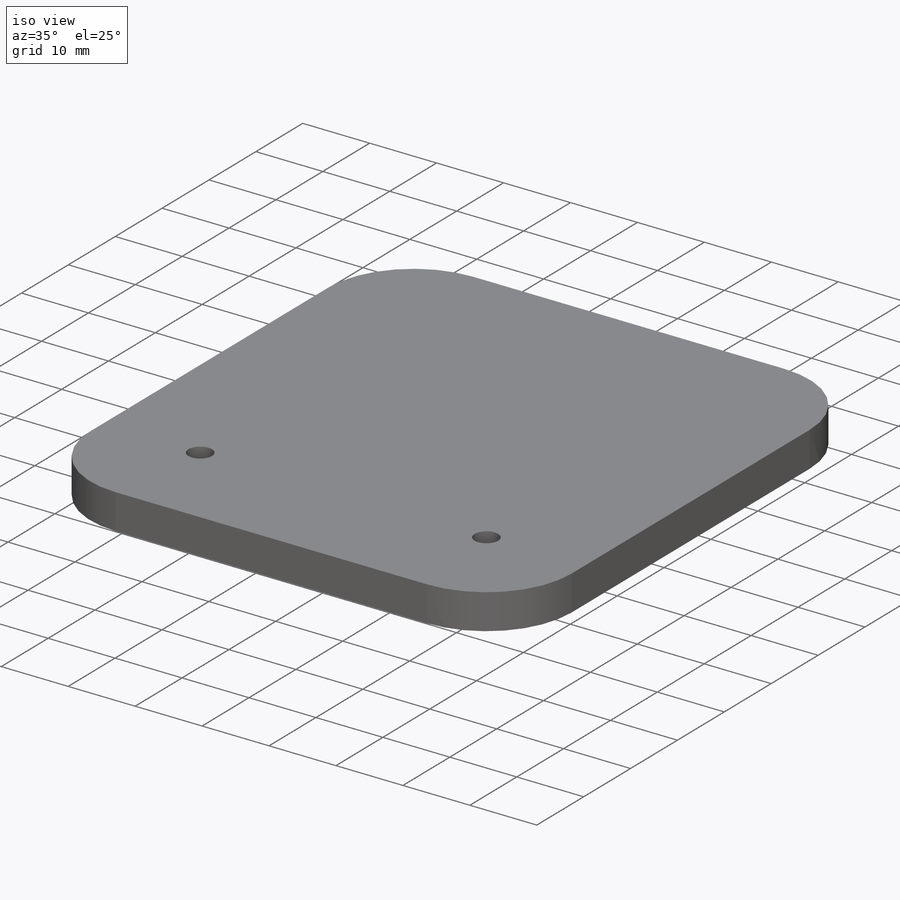
[diagram: iso view]
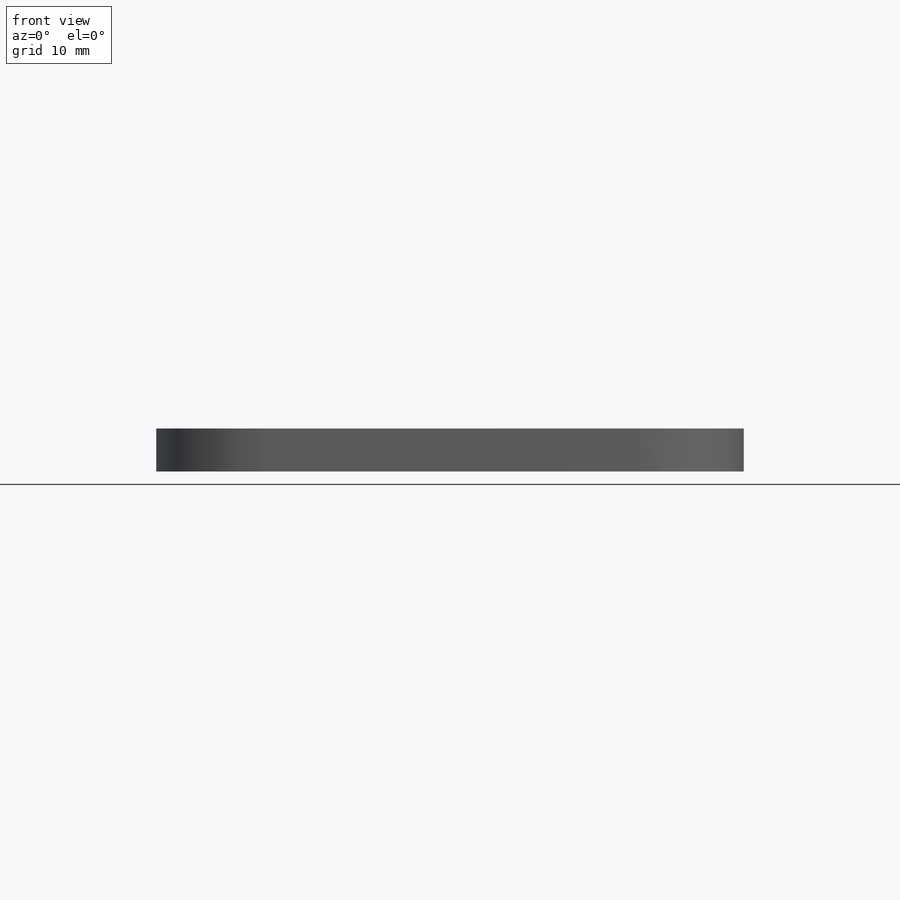
[diagram: front view]
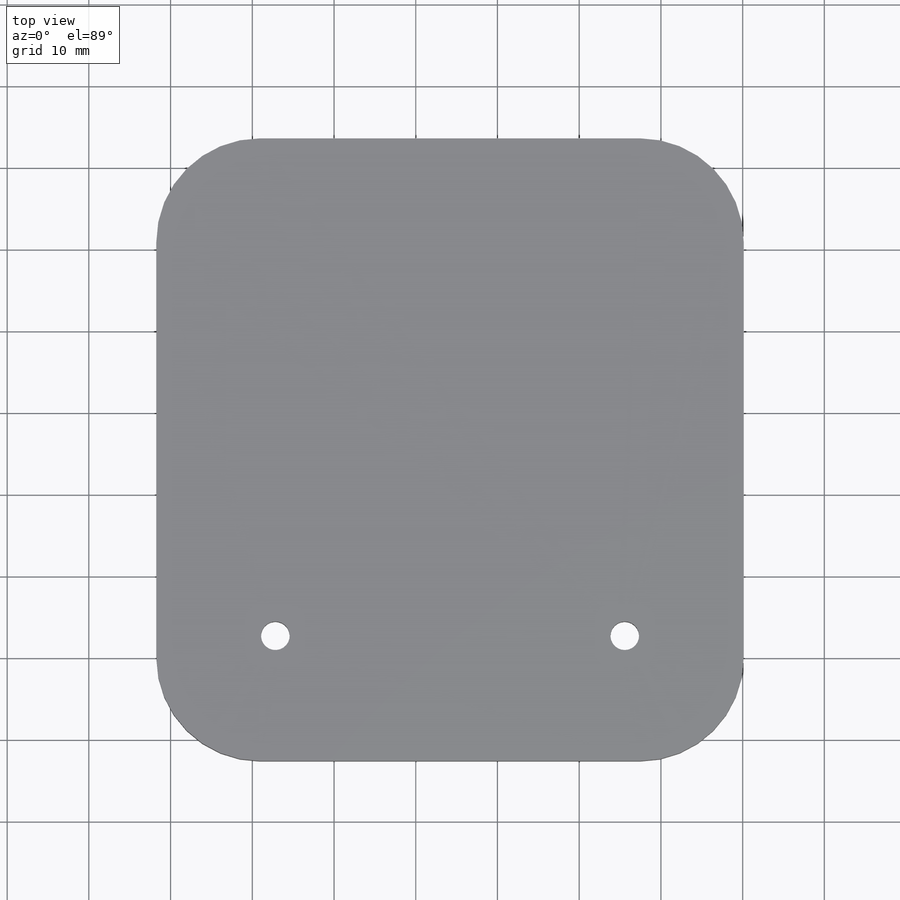
[diagram: top view]
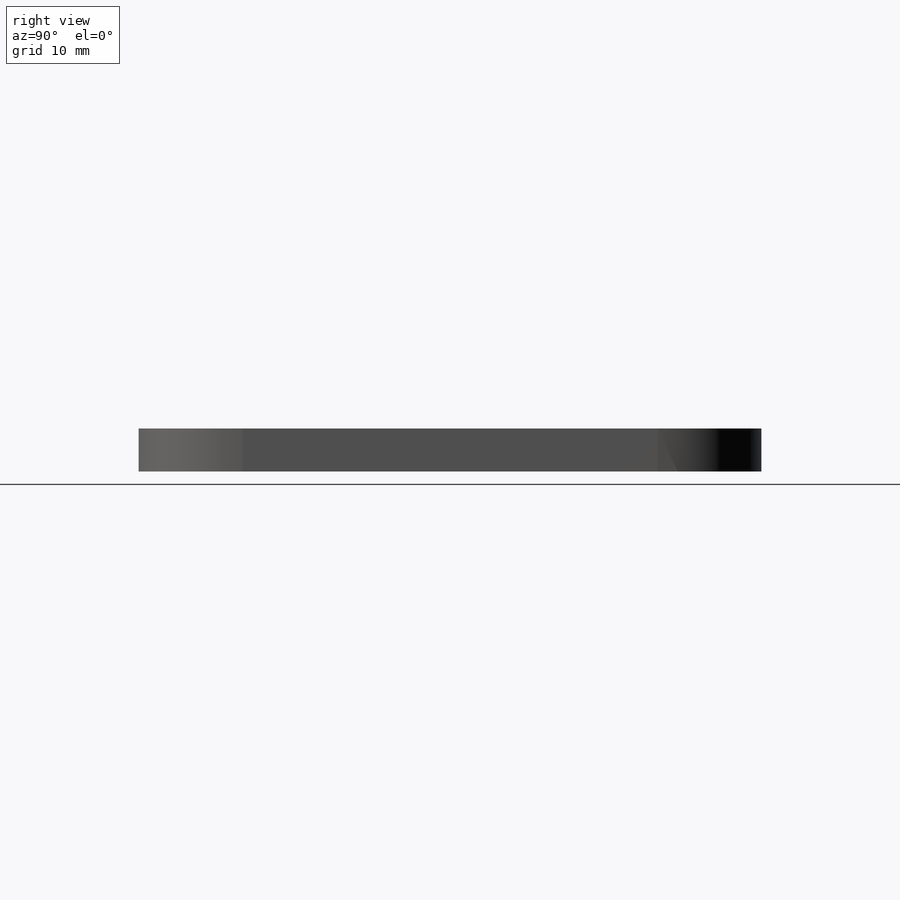
[diagram: right view]
SOLIDWORKS PART (.sldprt)
format: sldprt  version: not decoded by parser v0  size: 170,496 bytes
history: native  units: mm
features: fillet x4, extrude x2, material x1, sketch x1 (+11 scaffold rows collapsed)
feature tree (19):
  scaffold x11  (default folders/planes/origin — collapsed)
  material  "Material <not specified>"
  sketch  "Sketch2"  dims[D1=76.2mm]
  extrude  "Boss-Extrude2"  Depth=5.2578mm
  extrude  "hex washer screw_ai<5>@Bumper1"  [1 undecoded]
  fillet  "Fillet3"  Radius=12.7mm
  fillet  "Fillet4"  Radius=12.7mm
  fillet  "Fillet5"  Radius=12.7mm
  fillet  "Fillet6"  Radius=12.7mm
decode coverage: 6 of 7 modeling features carry decoded parameters
note: 1 parameter value undecoded
note: suppression state not decoded; provenance and decode notes live in map.json
